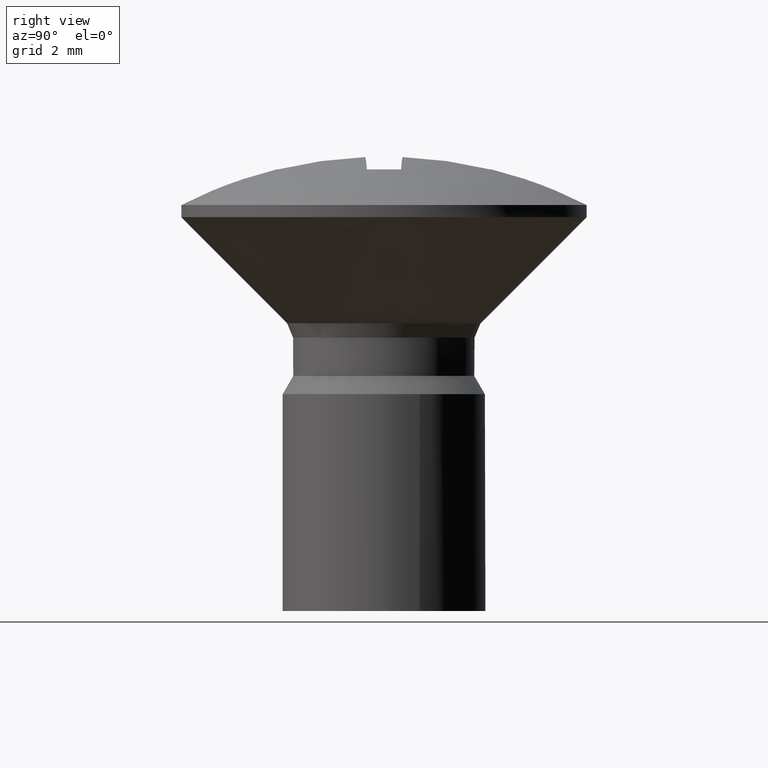
[diagram: clean part render]
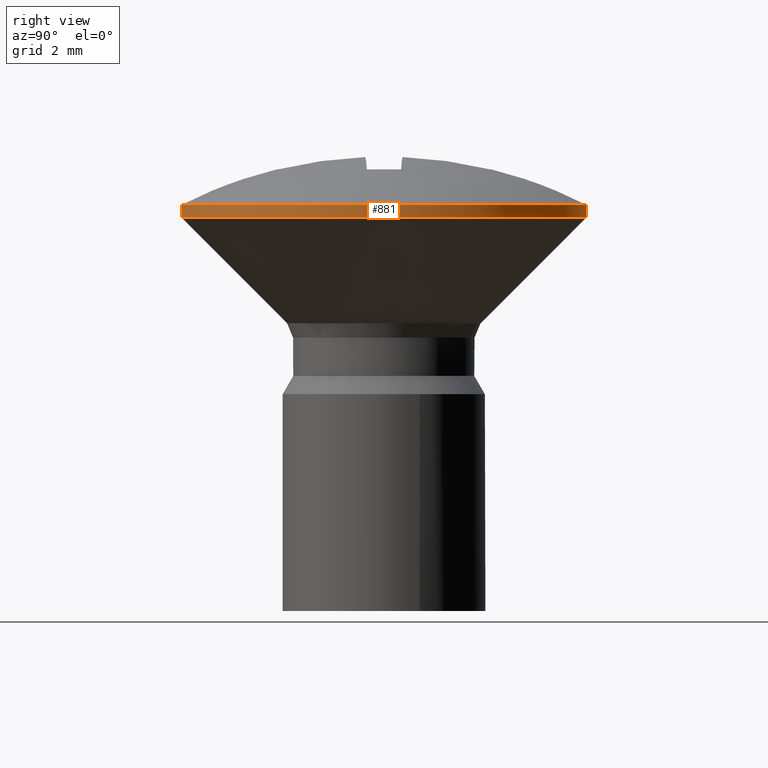
[diagram: same view with one face highlighted and labeled with its STEP entity id]
A machine part, right view. The second image highlights one B-rep face of the part: STEP entity #881.
In plain terms, the highlighted face is a freeform B-spline surface patch.
Its self-contained STEP definition (entity closure, byte-faithful):
#586=CARTESIAN_POINT('',(0.305241107756688,-4.990674089352352,-0.300000000000051));
#587=VERTEX_POINT('',#586);
#644=CARTESIAN_POINT('',(1.420076723529358,4.794098674339171,-0.299999999998956));
#645=VERTEX_POINT('',#644);
#651=CARTESIAN_POINT('',(5.0,0.0,-0.300000000000004));
#652=VERTEX_POINT('',#651);
#653=CARTESIAN_POINT('',(1.420076723529358,4.794098674339172,-0.299999999998956));
#654=CARTESIAN_POINT('',(5.000000000000001,3.733677088903260,-0.300000000000004));
#655=CARTESIAN_POINT('',(5.0,0.0,-0.300000000000004));
#663=(BOUNDED_CURVE()B_SPLINE_CURVE(2,(#653,#654,#655),.UNSPECIFIED.,.F.,.U.)B_SPLINE_CURVE_WITH_KNOTS((3,3),(0.298358482935160,0.500000000000000),.UNSPECIFIED.)CURVE()GEOMETRIC_REPRESENTATION_ITEM()RATIONAL_B_SPLINE_CURVE((0.908607213379145,0.763762268081805,1.0))REPRESENTATION_ITEM(''));
#664=EDGE_CURVE('',#645,#652,#663,.T.);
#666=CARTESIAN_POINT('',(5.0,0.0,-0.300000000000004));
#667=CARTESIAN_POINT('',(5.0,-4.703531835768809,-0.300000000000004));
#668=CARTESIAN_POINT('',(0.305241107756688,-4.990674089352352,-0.300000000000051));
#676=(BOUNDED_CURVE()B_SPLINE_CURVE(2,(#666,#667,#668),.UNSPECIFIED.,.F.,.U.)B_SPLINE_CURVE_WITH_KNOTS((3,3),(0.500000000000000,0.739333017211535),.UNSPECIFIED.)CURVE()GEOMETRIC_REPRESENTATION_ITEM()RATIONAL_B_SPLINE_CURVE((1.0,0.719603928882312,0.976072159483476))REPRESENTATION_ITEM(''));
#677=EDGE_CURVE('',#652,#587,#676,.T.);
#715=CARTESIAN_POINT('',(-0.590169328425906,4.965047851106961,-0.300000000000069));
#716=VERTEX_POINT('',#715);
#730=CARTESIAN_POINT('',(-0.590169328425906,4.965047851106961,-0.300000000000069));
#731=CARTESIAN_POINT('',(-0.296119666078858,5.0,-0.300000000000004));
#732=CARTESIAN_POINT('',(0.0,5.0,-0.300000000000004));
#733=CARTESIAN_POINT('',(0.724965497468241,5.000000000000001,-0.300000000000004));
#734=CARTESIAN_POINT('',(1.420076723529359,4.794098674339171,-0.299999999998956));
#742=(BOUNDED_CURVE()B_SPLINE_CURVE(2,(#730,#731,#732,#733,#734),.UNSPECIFIED.,.F.,.U.)B_SPLINE_CURVE_WITH_KNOTS((3,2,3),(0.229562536312018,0.250000000000000,0.298358482935160),.UNSPECIFIED.)CURVE()GEOMETRIC_REPRESENTATION_ITEM()RATIONAL_B_SPLINE_CURVE((0.956026877271384,0.976056021904175,1.0,0.943344513104742,0.908607213379144))REPRESENTATION_ITEM(''));
#743=EDGE_CURVE('',#716,#645,#742,.T.);
#810=CARTESIAN_POINT('',(-0.590171173283792,4.965047631818332,0.007504176555406));
#811=CARTESIAN_POINT('',(-0.448073643189888,4.981938077243028,0.007504176555406));
#812=CARTESIAN_POINT('',(-0.305242697674285,4.990673992109334,0.007504176555406));
#813=CARTESIAN_POINT('',(4.685431294435048,5.295916689783620,0.007504176555406));
#814=CARTESIAN_POINT('',(4.990673992109334,0.305242697674285,0.007504176555406));
#815=CARTESIAN_POINT('',(5.295916689783620,-4.685431294435048,0.007504176555406));
#816=CARTESIAN_POINT('',(0.305242697674285,-4.990673992109334,0.007504176555406));
#817=CARTESIAN_POINT('',(-0.590171173283792,4.965047631818332,-0.307687604413890));
#818=CARTESIAN_POINT('',(-0.448073643189888,4.981938077243028,-0.307687604413890));
#819=CARTESIAN_POINT('',(-0.305242697674285,4.990673992109334,-0.307687604413890));
#820=CARTESIAN_POINT('',(4.685431294435048,5.295916689783620,-0.307687604413890));
#821=CARTESIAN_POINT('',(4.990673992109334,0.305242697674285,-0.307687604413890));
#822=CARTESIAN_POINT('',(5.295916689783620,-4.685431294435048,-0.307687604413890));
#823=CARTESIAN_POINT('',(0.305242697674285,-4.990673992109334,-0.307687604413890));
#831=(BOUNDED_SURFACE()B_SPLINE_SURFACE(2,1,((#810,#817),(#811,#818),(#812,#819),(#813,#820),(#814,#821),(#815,#822),(#816,#823)),.UNSPECIFIED.,.F.,.F.,.U.)B_SPLINE_SURFACE_WITH_KNOTS((3,2,2,3),(2,2),(0.0,0.331370849898476,8.615642097360375,16.899913344822270),(0.0,0.315191780969296),.UNSPECIFIED.)GEOMETRIC_REPRESENTATION_ITEM()RATIONAL_B_SPLINE_SURFACE(((0.977505800795127,0.977505800795127),(0.988284271247462,0.988284271247462),(1.0,1.0),(0.707106781186548,0.707106781186548),(1.0,1.0),(0.707106781186548,0.707106781186548),(1.0,1.0)))REPRESENTATION_ITEM('')SURFACE());
#832=ORIENTED_EDGE('',*,*,#743,.F.);
#833=CARTESIAN_POINT('',(-0.590169351204147,4.965047848399439,0.000004074688201));
#834=VERTEX_POINT('',#833);
#835=CARTESIAN_POINT('',(-0.590169351204147,4.965047848399439,0.000004074688201));
#836=CARTESIAN_POINT('',(-0.590169328425906,4.965047851106961,-0.300000000000069));
#837=QUASI_UNIFORM_CURVE('',1,(#835,#836),.UNSPECIFIED.,.F.,.U.);
#838=EDGE_CURVE('',#834,#716,#837,.T.);
#839=ORIENTED_EDGE('',*,*,#838,.F.);
#840=CARTESIAN_POINT('',(5.0,0.0,0.000004074688201));
#841=VERTEX_POINT('',#840);
#842=CARTESIAN_POINT('',(-0.590169351204147,4.965047848399439,0.000004074688201));
#843=CARTESIAN_POINT('',(-0.296119677588382,4.999999999999999,0.000004074688201));
#844=CARTESIAN_POINT('',(0.0,5.0,0.000004074688201));
#845=CARTESIAN_POINT('',(5.000000000000001,5.000000000000001,0.000004074688201));
#846=CARTESIAN_POINT('',(5.0,0.0,0.000004074688201));
#854=(BOUNDED_CURVE()B_SPLINE_CURVE(2,(#842,#843,#844,#845,#846),.UNSPECIFIED.,.F.,.U.)B_SPLINE_CURVE_WITH_KNOTS((3,2,3),(0.229562535536678,0.250000000000000,0.500000000000000),.UNSPECIFIED.)CURVE()GEOMETRIC_REPRESENTATION_ITEM()RATIONAL_B_SPLINE_CURVE((0.956026875751687,0.976056020995809,1.0,0.707106781186548,1.0))REPRESENTATION_ITEM(''));
#855=EDGE_CURVE('',#834,#841,#854,.T.);
#856=ORIENTED_EDGE('',*,*,#855,.T.);
#857=CARTESIAN_POINT('',(0.305241127389485,-4.990674088151572,0.000004074688201));
#858=VERTEX_POINT('',#857);
#859=CARTESIAN_POINT('',(5.0,0.0,0.000004074688201));
#860=CARTESIAN_POINT('',(5.000000000000001,-4.703531817231024,0.000004074688201));
#861=CARTESIAN_POINT('',(0.305241127389485,-4.990674088151572,0.000004074688201));
#869=(BOUNDED_CURVE()B_SPLINE_CURVE(2,(#859,#860,#861),.UNSPECIFIED.,.F.,.U.)B_SPLINE_CURVE_WITH_KNOTS((3,3),(0.500000000000000,0.739333016532754),.UNSPECIFIED.)CURVE()GEOMETRIC_REPRESENTATION_ITEM()RATIONAL_B_SPLINE_CURVE((1.0,0.719603929677554,0.976072158028718))REPRESENTATION_ITEM(''));
#870=EDGE_CURVE('',#841,#858,#869,.T.);
#871=ORIENTED_EDGE('',*,*,#870,.T.);
#872=CARTESIAN_POINT('',(0.305241127389485,-4.990674088151572,0.000004074688201));
#873=CARTESIAN_POINT('',(0.305241107756688,-4.990674089352352,-0.300000000000051));
#874=QUASI_UNIFORM_CURVE('',1,(#872,#873),.UNSPECIFIED.,.F.,.U.);
#875=EDGE_CURVE('',#858,#587,#874,.T.);
#876=ORIENTED_EDGE('',*,*,#875,.T.);
#877=ORIENTED_EDGE('',*,*,#677,.F.);
#878=ORIENTED_EDGE('',*,*,#664,.F.);
#879=EDGE_LOOP('',(#832,#839,#856,#871,#876,#877,#878));
#880=FACE_OUTER_BOUND('',#879,.T.);
#881=ADVANCED_FACE('',(#880),#831,.T.);